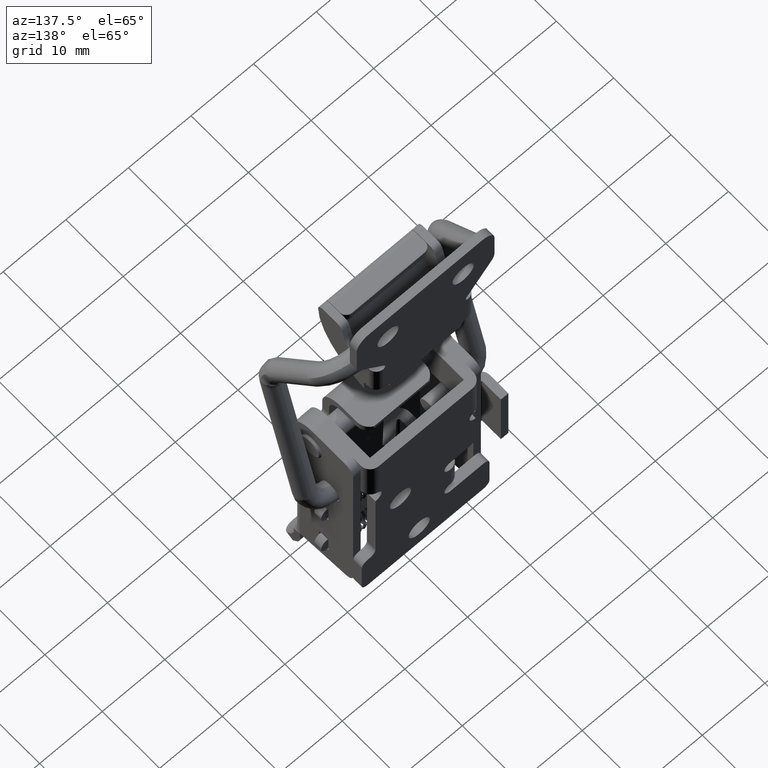
[diagram: clean part render]
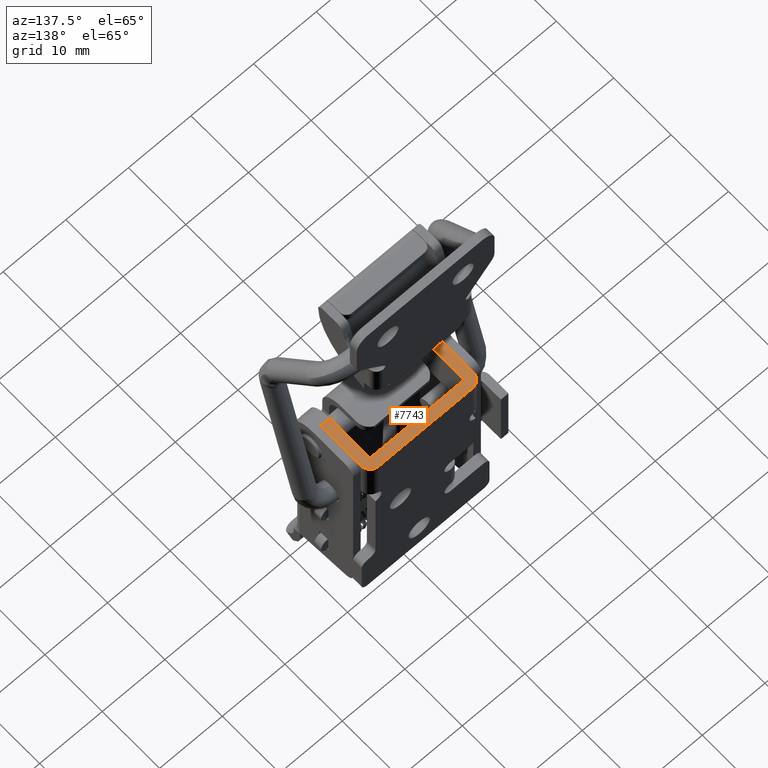
[diagram: same view with one face highlighted and labeled with its STEP entity id]
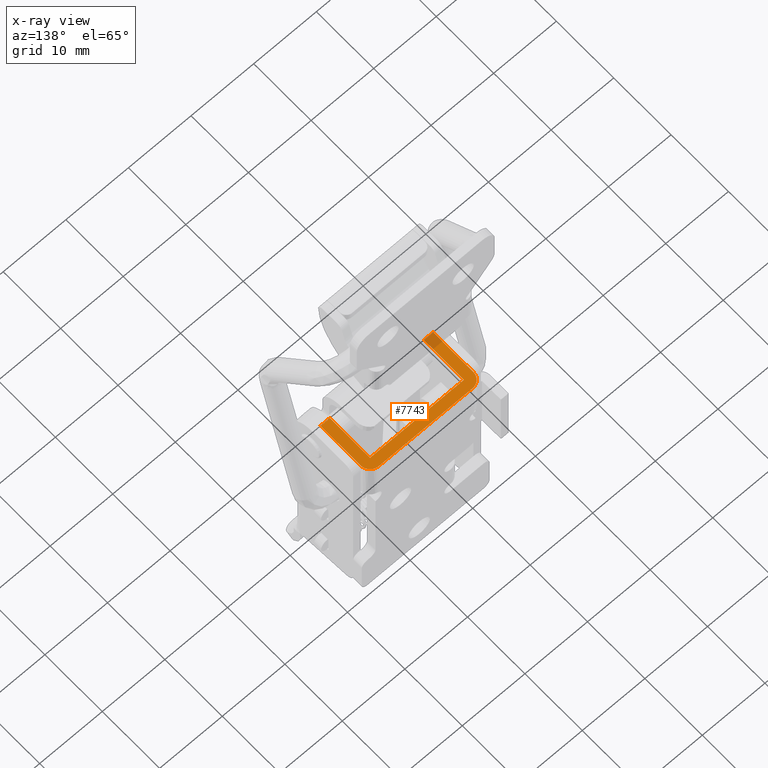
[diagram: x-ray of the same camera — body ghosted, the highlighted face saturated]
A machine part, auxiliary view. The second image highlights one B-rep face of the part: STEP entity #7743.
The next image is the same camera in x-ray: the body ghosted, the highlighted face saturated — about 5% of this face is hidden behind the body in this view.
In plain terms, the highlighted planar face has unit normal (0, 0, -1).
Its self-contained STEP definition (entity closure, byte-faithful):
#3908 = CARTESIAN_POINT ( 'NONE',  ( 1.200000000002055900, 7.500000000000000000, -27.50002899999980200 ) ) ;
#3909 = CARTESIAN_POINT ( 'NONE',  ( -5.799999999997829100, 7.500000000000000000, -27.50002899999980200 ) ) ;
#3910 = DIRECTION ( 'NONE',  ( 1.000000000000000000, 0.0000000000000000000, 0.0000000000000000000 ) ) ;
#3911 = VECTOR ( 'NONE', #3910, 1000.000000000000000 ) ;
#3912 = CARTESIAN_POINT ( 'NONE',  ( 0.0000000000000000000, 7.500000000000000000, -27.50002899999980200 ) ) ;
#3913 = LINE ( 'NONE', #3912, #3911 ) ;
#3941 = CARTESIAN_POINT ( 'NONE',  ( 1.200000000002169800, 9.000000000000000000, -27.50002899999980200 ) ) ;
#3942 = DIRECTION ( 'NONE',  ( -1.000000000000000000, 0.0000000000000000000, 0.0000000000000000000 ) ) ;
#3943 = VECTOR ( 'NONE', #3942, 1000.000000000000000 ) ;
#3944 = CARTESIAN_POINT ( 'NONE',  ( 0.0000000000000000000, 9.000000000000000000, -27.50002899999980200 ) ) ;
#3945 = LINE ( 'NONE', #3944, #3943 ) ;
#3946 = CARTESIAN_POINT ( 'NONE',  ( -5.799999999997829100, 9.000000000000000000, -27.50002899999980200 ) ) ;
#3971 = DIRECTION ( 'NONE',  ( 1.000000000000000000, 0.0000000000000000000, 0.0000000000000000000 ) ) ;
#3972 = VECTOR ( 'NONE', #3971, 1000.000000000000000 ) ;
#3973 = CARTESIAN_POINT ( 'NONE',  ( 0.0000000000000000000, -9.000000000000000000, -27.50002899999980200 ) ) ;
#3974 = LINE ( 'NONE', #3973, #3972 ) ;
#4001 = CARTESIAN_POINT ( 'NONE',  ( -5.799999999997829100, -9.000000000000000000, -27.50002899999980200 ) ) ;
#4033 = CARTESIAN_POINT ( 'NONE',  ( 1.200000000002055900, -7.500000000000000000, -27.50002899999980200 ) ) ;
#4035 = DIRECTION ( 'NONE',  ( -1.000000000000000000, 0.0000000000000000000, 0.0000000000000000000 ) ) ;
#4036 = VECTOR ( 'NONE', #4035, 1000.000000000000000 ) ;
#4037 = CARTESIAN_POINT ( 'NONE',  ( 0.0000000000000000000, -7.500000000000000000, -27.50002899999980200 ) ) ;
#4038 = LINE ( 'NONE', #4037, #4036 ) ;
#4039 = CARTESIAN_POINT ( 'NONE',  ( -5.799999999997829100, -7.500000000000000000, -27.50002899999980200 ) ) ;
#4062 = CARTESIAN_POINT ( 'NONE',  ( 1.200000000002169800, -9.000000000000000000, -27.50002899999980200 ) ) ;
#4068 = CARTESIAN_POINT ( 'NONE',  ( 2.700000000002170400, -7.500000000000000000, -27.50002899999980200 ) ) ;
#4079 = DIRECTION ( 'NONE',  ( 1.000000000000000000, 0.0000000000000000000, 0.0000000000000000000 ) ) ;
#4080 = DIRECTION ( 'NONE',  ( 0.0000000000000000000, 0.0000000000000000000, -1.000000000000000000 ) ) ;
#4081 = CARTESIAN_POINT ( 'NONE',  ( 0.0000000000000000000, 0.0000000000000000000, -27.50002899999980200 ) ) ;
#4082 = AXIS2_PLACEMENT_3D ( 'NONE', #4081, #4080, #4079 ) ;
#4083 = PLANE ( 'NONE',  #4082 ) ;
#4084 = FACE_OUTER_BOUND ( 'NONE', #7744, .T. ) ;
#4085 = DIRECTION ( 'NONE',  ( 5.782411586589379600E-017, 1.000000000000000000, 0.0000000000000000000 ) ) ;
#4086 = VECTOR ( 'NONE', #4085, 1000.000000000000000 ) ;
#4087 = CARTESIAN_POINT ( 'NONE',  ( 2.700000000002055400, -1.561251128380320000E-016, -27.50002899999980200 ) ) ;
#4088 = LINE ( 'NONE', #4087, #4086 ) ;
#4099 = DIRECTION ( 'NONE',  ( -7.228014483236719200E-017, -1.000000000000000000, 0.0000000000000000000 ) ) ;
#4100 = VECTOR ( 'NONE', #4099, 1000.000000000000000 ) ;
#4101 = CARTESIAN_POINT ( 'NONE',  ( 1.200000000002055900, -8.673617379898928900E-017, -27.50002899999980200 ) ) ;
#4102 = LINE ( 'NONE', #4101, #4100 ) ;
#4118 = CARTESIAN_POINT ( 'NONE',  ( 2.700000000002055400, 7.500000000000000000, -27.50002899999980200 ) ) ;
#4119 = DIRECTION ( 'NONE',  ( -1.000000000000000000, 0.0000000000000000000, 0.0000000000000000000 ) ) ;
#4120 = DIRECTION ( 'NONE',  ( 0.0000000000000000000, 0.0000000000000000000, 1.000000000000000000 ) ) ;
#4121 = CARTESIAN_POINT ( 'NONE',  ( 1.200000000002169800, 7.500000000000000000, -27.50002899999980200 ) ) ;
#4122 = AXIS2_PLACEMENT_3D ( 'NONE', #4121, #4120, #4119 ) ;
#4123 = CIRCLE ( 'NONE', #4122, 1.500000000000000000 ) ;
#4129 = DIRECTION ( 'NONE',  ( -1.000000000000000000, 0.0000000000000000000, 0.0000000000000000000 ) ) ;
#4130 = DIRECTION ( 'NONE',  ( 0.0000000000000000000, 0.0000000000000000000, 1.000000000000000000 ) ) ;
#4131 = CARTESIAN_POINT ( 'NONE',  ( 1.200000000002169800, -7.500000000000000000, -27.50002899999980200 ) ) ;
#4132 = AXIS2_PLACEMENT_3D ( 'NONE', #4131, #4130, #4129 ) ;
#4133 = CIRCLE ( 'NONE', #4132, 1.500000000000000000 ) ;
#4183 = DIRECTION ( 'NONE',  ( 0.0000000000000000000, -1.000000000000000000, 0.0000000000000000000 ) ) ;
#4184 = VECTOR ( 'NONE', #4183, 1000.000000000000000 ) ;
#4185 = CARTESIAN_POINT ( 'NONE',  ( -5.799999999997829100, 0.0000000000000000000, -27.50002899999980200 ) ) ;
#4186 = LINE ( 'NONE', #4185, #4184 ) ;
#4187 = DIRECTION ( 'NONE',  ( 0.0000000000000000000, -1.000000000000000000, 0.0000000000000000000 ) ) ;
#4188 = VECTOR ( 'NONE', #4187, 1000.000000000000000 ) ;
#4189 = CARTESIAN_POINT ( 'NONE',  ( -5.799999999997829100, 0.0000000000000000000, -27.50002899999980200 ) ) ;
#4193 = LINE ( 'NONE', #4189, #4188 ) ;
#7657 = EDGE_CURVE ( 'NONE', #7658, #7659, #3913, .T. ) ;
#7658 = VERTEX_POINT ( 'NONE', #3909 ) ;
#7659 = VERTEX_POINT ( 'NONE', #3908 ) ;
#7671 = VERTEX_POINT ( 'NONE', #3946 ) ;
#7673 = EDGE_CURVE ( 'NONE', #7674, #7671, #3945, .T. ) ;
#7674 = VERTEX_POINT ( 'NONE', #3941 ) ;
#7694 = EDGE_CURVE ( 'NONE', #7713, #7718, #3974, .T. ) ;
#7713 = VERTEX_POINT ( 'NONE', #4001 ) ;
#7718 = VERTEX_POINT ( 'NONE', #4062 ) ;
#7729 = VERTEX_POINT ( 'NONE', #4039 ) ;
#7731 = EDGE_CURVE ( 'NONE', #7732, #7729, #4038, .T. ) ;
#7732 = VERTEX_POINT ( 'NONE', #4033 ) ;
#7741 = EDGE_CURVE ( 'NONE', #7752, #7760, #4088, .T. ) ;
#7743 = ADVANCED_FACE ( 'NONE', ( #4084 ), #4083, .F. ) ;
#7744 = EDGE_LOOP ( 'NONE', ( #7745, #7804, #7806, #7807, #7808, #7809, #7811, #7812, #7813, #7814 ) ) ;
#7745 = ORIENTED_EDGE ( 'NONE', *, *, #7673, .T. ) ;
#7752 = VERTEX_POINT ( 'NONE', #4068 ) ;
#7754 = EDGE_CURVE ( 'NONE', #7718, #7752, #4133, .T. ) ;
#7759 = EDGE_CURVE ( 'NONE', #7760, #7674, #4123, .T. ) ;
#7760 = VERTEX_POINT ( 'NONE', #4118 ) ;
#7771 = EDGE_CURVE ( 'NONE', #7659, #7732, #4102, .T. ) ;
#7804 = ORIENTED_EDGE ( 'NONE', *, *, #7805, .T. ) ;
#7805 = EDGE_CURVE ( 'NONE', #7671, #7658, #4193, .T. ) ;
#7806 = ORIENTED_EDGE ( 'NONE', *, *, #7657, .T. ) ;
#7807 = ORIENTED_EDGE ( 'NONE', *, *, #7771, .T. ) ;
#7808 = ORIENTED_EDGE ( 'NONE', *, *, #7731, .T. ) ;
#7809 = ORIENTED_EDGE ( 'NONE', *, *, #7810, .T. ) ;
#7810 = EDGE_CURVE ( 'NONE', #7729, #7713, #4186, .T. ) ;
#7811 = ORIENTED_EDGE ( 'NONE', *, *, #7694, .T. ) ;
#7812 = ORIENTED_EDGE ( 'NONE', *, *, #7754, .T. ) ;
#7813 = ORIENTED_EDGE ( 'NONE', *, *, #7741, .T. ) ;
#7814 = ORIENTED_EDGE ( 'NONE', *, *, #7759, .T. ) ;